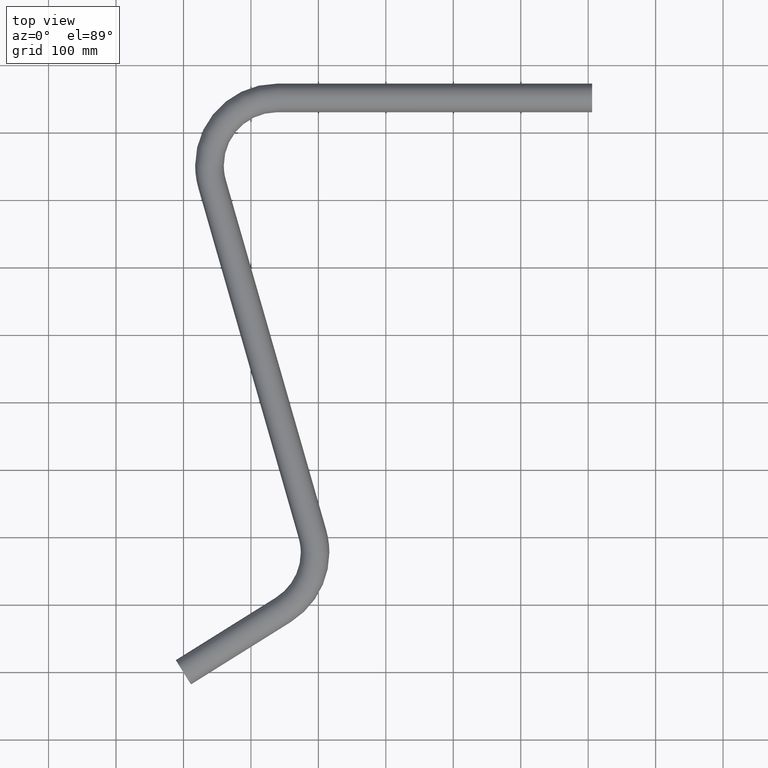
[diagram: clean part render]
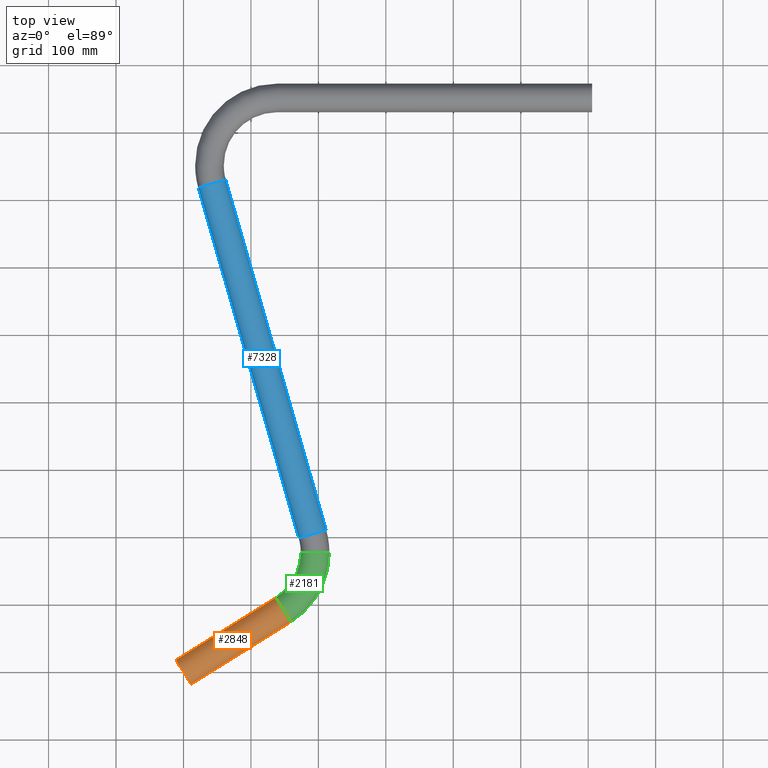
[diagram: same view with three faces highlighted in distinct colors, each labeled with its STEP entity id]
A machine part, top view with three faces highlighted in distinct colors.
Their STEP definitions:

[orange] entity #2848 — the highlighted cylindrical surface (edge-blend (fillet) strip) has radius 21.2 mm, axis along (-0.848, -0.5299, -0).
#47 = ORIENTED_EDGE ( 'NONE', *, *, #8756, .F. ) ;
#201 = DIRECTION ( 'NONE',  ( -0.8480480961563796600, -0.5299192642332791700, -0.0000000000000000000 ) ) ;
#1069 = CYLINDRICAL_SURFACE ( 'NONE', #13132, 21.19999999999998900 ) ;
#1326 = DIRECTION ( 'NONE',  ( 0.5299192642332789500, -0.8480480961563797700, 0.0000000000000000000 ) ) ;
#1501 = DIRECTION ( 'NONE',  ( 0.8480480961563847700, 0.5299192642332709600, -0.0000000000000000000 ) ) ;
#1973 = VERTEX_POINT ( 'NONE', #10220 ) ;
#2648 = VECTOR ( 'NONE', #201, 999.9999999999998900 ) ;
#2714 = EDGE_LOOP ( 'NONE', ( #10002, #12233, #7390, #47 ) ) ;
#2740 = VERTEX_POINT ( 'NONE', #7142 ) ;
#2848 = ADVANCED_FACE ( 'NONE', ( #9326 ), #1069, .T. ) ;
#3078 = VECTOR ( 'NONE', #10115, 999.9999999999998900 ) ;
#3188 = DIRECTION ( 'NONE',  ( 0.8480480961563777700, 0.5299192642332822800, -3.826221258505972300E-017 ) ) ;
#4001 = VERTEX_POINT ( 'NONE', #11603 ) ;
#7142 = CARTESIAN_POINT ( 'NONE',  ( 159.3413046867721600, 74.56891564075159800, 0.0000000000000000000 ) ) ;
#7206 = CARTESIAN_POINT ( 'NONE',  ( 11.23428840174556200, -17.97861963851521200, 0.0000000000000000000 ) ) ;
#7390 = ORIENTED_EDGE ( 'NONE', *, *, #9957, .T. ) ;
#7705 = CARTESIAN_POINT ( 'NONE',  ( 148.1070162850268200, 92.54753527926693800, 0.0000000000000000000 ) ) ;
#7826 = LINE ( 'NONE', #12723, #2648 ) ;
#8594 = LINE ( 'NONE', #9090, #3078 ) ;
#8743 = DIRECTION ( 'NONE',  ( 0.5299192642332706300, -0.8480480961563848800, 0.0000000000000000000 ) ) ;
#8756 = EDGE_CURVE ( 'NONE', #2740, #13452, #8594, .T. ) ;
#9090 = CARTESIAN_POINT ( 'NONE',  ( 159.3413046867721600, 74.56891564075159800, 0.0000000000000000000 ) ) ;
#9326 = FACE_OUTER_BOUND ( 'NONE', #2714, .T. ) ;
#9373 = CIRCLE ( 'NONE', #11193, 21.20000000000000600 ) ;
#9382 = CARTESIAN_POINT ( 'NONE',  ( 0.0000000000000000000, 0.0000000000000000000, 0.0000000000000000000 ) ) ;
#9957 = EDGE_CURVE ( 'NONE', #4001, #13452, #13079, .T. ) ;
#10002 = ORIENTED_EDGE ( 'NONE', *, *, #10447, .F. ) ;
#10115 = DIRECTION ( 'NONE',  ( -0.8480480961563796600, -0.5299192642332791700, -0.0000000000000000000 ) ) ;
#10220 = CARTESIAN_POINT ( 'NONE',  ( 136.8727278832814700, 110.5261549177822900, 2.596251214192389200E-015 ) ) ;
#10420 = DIRECTION ( 'NONE',  ( -0.5299192642332822800, 0.8480480961563776600, 0.0000000000000000000 ) ) ;
#10447 = EDGE_CURVE ( 'NONE', #1973, #2740, #9373, .T. ) ;
#10632 = DIRECTION ( 'NONE',  ( -0.8480480961563795500, -0.5299192642332791700, -0.0000000000000000000 ) ) ;
#11193 = AXIS2_PLACEMENT_3D ( 'NONE', #7705, #1501, #8743 ) ;
#11404 = AXIS2_PLACEMENT_3D ( 'NONE', #9382, #3188, #10420 ) ;
#11603 = CARTESIAN_POINT ( 'NONE',  ( -11.23428840174559100, 17.97861963851518800, 2.596251214192389200E-015 ) ) ;
#11856 = EDGE_CURVE ( 'NONE', #1973, #4001, #7826, .T. ) ;
#12233 = ORIENTED_EDGE ( 'NONE', *, *, #11856, .T. ) ;
#12659 = CARTESIAN_POINT ( 'NONE',  ( 148.1070162850266500, 92.54753527926683900, 0.0000000000000000000 ) ) ;
#12723 = CARTESIAN_POINT ( 'NONE',  ( 136.8727278832811300, 110.5261549177820900, 2.596251214192389200E-015 ) ) ;
#13079 = CIRCLE ( 'NONE', #11404, 21.20000000000000600 ) ;
#13132 = AXIS2_PLACEMENT_3D ( 'NONE', #12659, #10632, #1326 ) ;
#13452 = VERTEX_POINT ( 'NONE', #7206 ) ;

[blue] entity #7328 — the highlighted cylindrical surface (edge-blend (fillet) strip) has radius 21.2 mm, axis along (-0.2756, 0.9613, 0).
#417 = VECTOR ( 'NONE', #12989, 1000.000000000000200 ) ;
#788 = CARTESIAN_POINT ( 'NONE',  ( 191.2412594555299800, 204.9160804766113400, 0.0000000000000000000 ) ) ;
#1070 = EDGE_CURVE ( 'NONE', #7219, #1105, #11141, .T. ) ;
#1105 = VERTEX_POINT ( 'NONE', #9088 ) ;
#1850 = DIRECTION ( 'NONE',  ( -0.9612616959383012400, -0.2756373558170608900, 0.0000000000000000000 ) ) ;
#1898 = ORIENTED_EDGE ( 'NONE', *, *, #3963, .T. ) ;
#2107 = CYLINDRICAL_SURFACE ( 'NONE', #2476, 21.20000000000001000 ) ;
#2113 = EDGE_CURVE ( 'NONE', #7219, #7562, #2217, .T. ) ;
#2217 = CIRCLE ( 'NONE', #3462, 21.20000000000001000 ) ;
#2350 = CARTESIAN_POINT ( 'NONE',  ( 170.8625115016379800, 199.0725685332896300, 0.0000000000000000000 ) ) ;
#2476 = AXIS2_PLACEMENT_3D ( 'NONE', #10799, #7691, #3581 ) ;
#2606 = ORIENTED_EDGE ( 'NONE', *, *, #1070, .F. ) ;
#3462 = AXIS2_PLACEMENT_3D ( 'NONE', #788, #8039, #1850 ) ;
#3581 = DIRECTION ( 'NONE',  ( -0.9612616959383012400, -0.2756373558170608900, 0.0000000000000000000 ) ) ;
#3963 = EDGE_CURVE ( 'NONE', #7562, #13298, #11797, .T. ) ;
#4822 = CARTESIAN_POINT ( 'NONE',  ( 170.8625115016379000, 199.0725685332899100, 0.0000000000000000000 ) ) ;
#4895 = CIRCLE ( 'NONE', #6621, 21.20000000000001700 ) ;
#5204 = CARTESIAN_POINT ( 'NONE',  ( 211.6200074094218700, 210.7595924199333100, 2.596251214192390000E-015 ) ) ;
#5851 = DIRECTION ( 'NONE',  ( -0.2756373558170578400, 0.9612616959383020200, -0.0000000000000000000 ) ) ;
#6621 = AXIS2_PLACEMENT_3D ( 'NONE', #12051, #5851, #13073 ) ;
#6737 = ORIENTED_EDGE ( 'NONE', *, *, #2113, .T. ) ;
#6750 = EDGE_LOOP ( 'NONE', ( #6737, #1898, #9885, #2606 ) ) ;
#7219 = VERTEX_POINT ( 'NONE', #2350 ) ;
#7328 = ADVANCED_FACE ( 'NONE', ( #7625 ), #2107, .T. ) ;
#7562 = VERTEX_POINT ( 'NONE', #9573 ) ;
#7625 = FACE_OUTER_BOUND ( 'NONE', #6750, .T. ) ;
#7691 = DIRECTION ( 'NONE',  ( -0.2756373558170608400, 0.9612616959383013500, 0.0000000000000000000 ) ) ;
#8039 = DIRECTION ( 'NONE',  ( -0.2756373558170608400, 0.9612616959383013500, 0.0000000000000000000 ) ) ;
#9088 = CARTESIAN_POINT ( 'NONE',  ( 22.03484650225252800, 718.0963170951369000, 0.0000000000000000000 ) ) ;
#9365 = VECTOR ( 'NONE', #12417, 1000.000000000000200 ) ;
#9573 = CARTESIAN_POINT ( 'NONE',  ( 211.6200074094219600, 210.7595924199330300, 2.596251214192390000E-015 ) ) ;
#9885 = ORIENTED_EDGE ( 'NONE', *, *, #13363, .F. ) ;
#10799 = CARTESIAN_POINT ( 'NONE',  ( 191.2412594555299000, 204.9160804766116300, 0.0000000000000000000 ) ) ;
#11104 = CARTESIAN_POINT ( 'NONE',  ( 62.79234241003651800, 729.7833409817802700, 2.596251214192390000E-015 ) ) ;
#11141 = LINE ( 'NONE', #4822, #417 ) ;
#11797 = LINE ( 'NONE', #5204, #9365 ) ;
#12051 = CARTESIAN_POINT ( 'NONE',  ( 42.41359445614449400, 723.9398290384587000, 0.0000000000000000000 ) ) ;
#12417 = DIRECTION ( 'NONE',  ( -0.2756373558170607800, 0.9612616959383011300, 0.0000000000000000000 ) ) ;
#12989 = DIRECTION ( 'NONE',  ( -0.2756373558170607800, 0.9612616959383011300, 0.0000000000000000000 ) ) ;
#13073 = DIRECTION ( 'NONE',  ( 0.9612616959383015700, 0.2756373558170595000, 0.0000000000000000000 ) ) ;
#13298 = VERTEX_POINT ( 'NONE', #11104 ) ;
#13363 = EDGE_CURVE ( 'NONE', #1105, #13298, #4895, .T. ) ;

[green] entity #2181 — the highlighted toroidal blend (fillet) surface has major radius 100 mm and minor (blend) radius 21.2 mm.
#29 = CARTESIAN_POINT ( 'NONE',  ( 173.9150898616997600, 177.3523448949054900, -2.596251214192389600E-015 ) ) ;
#48 = CARTESIAN_POINT ( 'NONE',  ( 95.11508986169970100, 177.3523448949054900, 0.0000000000000000000 ) ) ;
#79 = DIRECTION ( 'NONE',  ( 0.0000000000000000000, 0.0000000000000000000, -1.000000000000000000 ) ) ;
#166 = VERTEX_POINT ( 'NONE', #29 ) ;
#272 = AXIS2_PLACEMENT_3D ( 'NONE', #48, #7350, #1147 ) ;
#666 = ORIENTED_EDGE ( 'NONE', *, *, #10447, .T. ) ;
#1147 = DIRECTION ( 'NONE',  ( 1.000000000000000000, 0.0000000000000000000, 0.0000000000000000000 ) ) ;
#1175 = EDGE_CURVE ( 'NONE', #5676, #166, #12585, .T. ) ;
#1395 = ORIENTED_EDGE ( 'NONE', *, *, #9244, .T. ) ;
#1501 = DIRECTION ( 'NONE',  ( 0.8480480961563847700, 0.5299192642332709600, -0.0000000000000000000 ) ) ;
#1572 = FACE_OUTER_BOUND ( 'NONE', #3530, .T. ) ;
#1738 = CIRCLE ( 'NONE', #7911, 78.80000000000006800 ) ;
#1973 = VERTEX_POINT ( 'NONE', #10220 ) ;
#2181 = ADVANCED_FACE ( 'NONE', ( #1572 ), #4358, .T. ) ;
#2740 = VERTEX_POINT ( 'NONE', #7142 ) ;
#3073 = CARTESIAN_POINT ( 'NONE',  ( 95.11508986169970100, 177.3523448949054900, 0.0000000000000000000 ) ) ;
#3530 = EDGE_LOOP ( 'NONE', ( #666, #1395, #5583, #9041 ) ) ;
#4358 = TOROIDAL_SURFACE ( 'NONE', #6900, 100.0000000000000600, 21.20000000000000300 ) ;
#4662 = CARTESIAN_POINT ( 'NONE',  ( 216.3150898616997600, 177.3523448949054900, 0.0000000000000000000 ) ) ;
#5583 = ORIENTED_EDGE ( 'NONE', *, *, #1175, .T. ) ;
#5676 = VERTEX_POINT ( 'NONE', #4662 ) ;
#5680 = DIRECTION ( 'NONE',  ( 0.0000000000000000000, 0.0000000000000000000, 1.000000000000000000 ) ) ;
#5942 = EDGE_CURVE ( 'NONE', #1973, #166, #1738, .T. ) ;
#6330 = DIRECTION ( 'NONE',  ( 0.0000000000000000000, -1.000000000000000000, 0.0000000000000000000 ) ) ;
#6900 = AXIS2_PLACEMENT_3D ( 'NONE', #3073, #10299, #11249 ) ;
#7142 = CARTESIAN_POINT ( 'NONE',  ( 159.3413046867721600, 74.56891564075159800, 0.0000000000000000000 ) ) ;
#7350 = DIRECTION ( 'NONE',  ( 0.0000000000000000000, 0.0000000000000000000, 1.000000000000000000 ) ) ;
#7705 = CARTESIAN_POINT ( 'NONE',  ( 148.1070162850268200, 92.54753527926693800, 0.0000000000000000000 ) ) ;
#7911 = AXIS2_PLACEMENT_3D ( 'NONE', #11877, #5680, #12905 ) ;
#8743 = DIRECTION ( 'NONE',  ( 0.5299192642332706300, -0.8480480961563848800, 0.0000000000000000000 ) ) ;
#9041 = ORIENTED_EDGE ( 'NONE', *, *, #5942, .F. ) ;
#9244 = EDGE_CURVE ( 'NONE', #2740, #5676, #11491, .T. ) ;
#9373 = CIRCLE ( 'NONE', #11193, 21.20000000000000600 ) ;
#10220 = CARTESIAN_POINT ( 'NONE',  ( 136.8727278832814700, 110.5261549177822900, 2.596251214192389200E-015 ) ) ;
#10299 = DIRECTION ( 'NONE',  ( 0.0000000000000000000, 0.0000000000000000000, 1.000000000000000000 ) ) ;
#10447 = EDGE_CURVE ( 'NONE', #1973, #2740, #9373, .T. ) ;
#10547 = AXIS2_PLACEMENT_3D ( 'NONE', #12519, #6330, #79 ) ;
#11193 = AXIS2_PLACEMENT_3D ( 'NONE', #7705, #1501, #8743 ) ;
#11249 = DIRECTION ( 'NONE',  ( 1.000000000000000000, 0.0000000000000000000, 0.0000000000000000000 ) ) ;
#11491 = CIRCLE ( 'NONE', #272, 121.2000000000000600 ) ;
#11877 = CARTESIAN_POINT ( 'NONE',  ( 95.11508986169970100, 177.3523448949054900, -2.596251214192389200E-015 ) ) ;
#12519 = CARTESIAN_POINT ( 'NONE',  ( 195.1150898616997700, 177.3523448949054900, 0.0000000000000000000 ) ) ;
#12585 = CIRCLE ( 'NONE', #10547, 21.20000000000000300 ) ;
#12905 = DIRECTION ( 'NONE',  ( 1.000000000000000000, 0.0000000000000000000, 0.0000000000000000000 ) ) ;